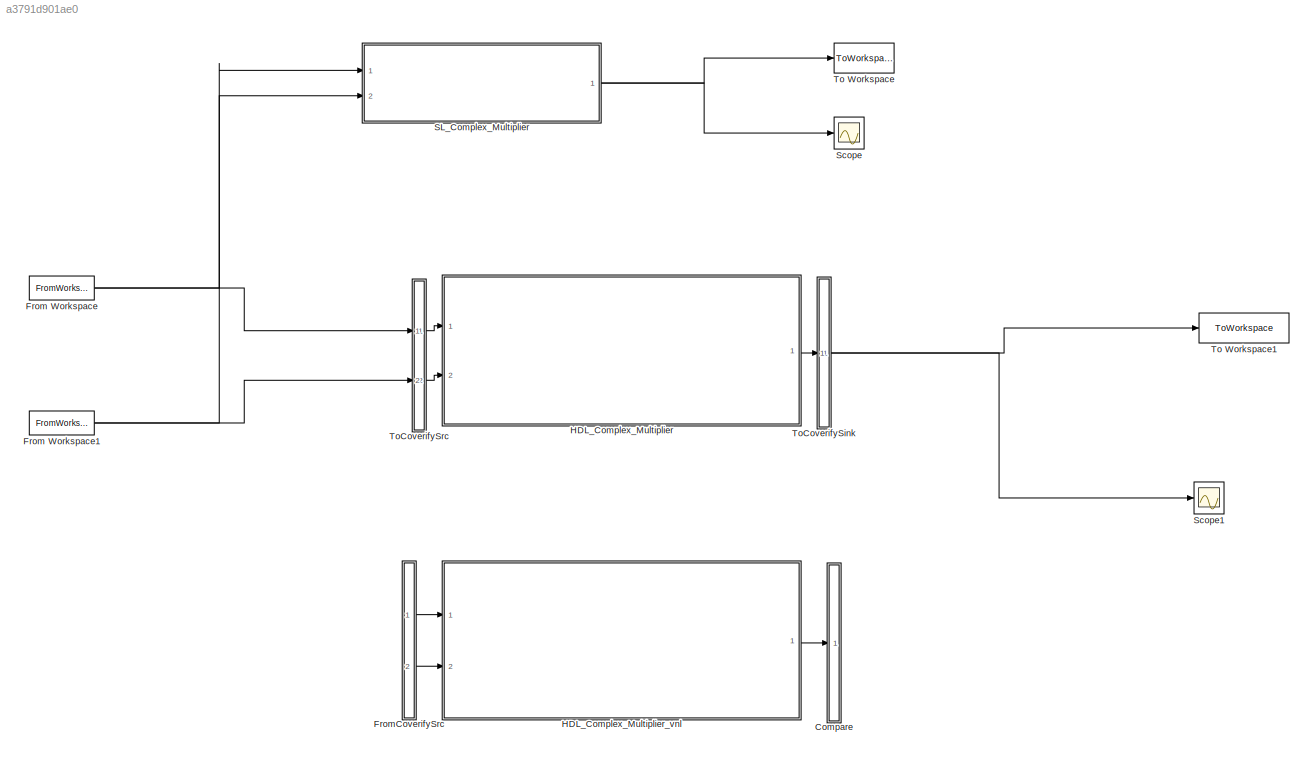
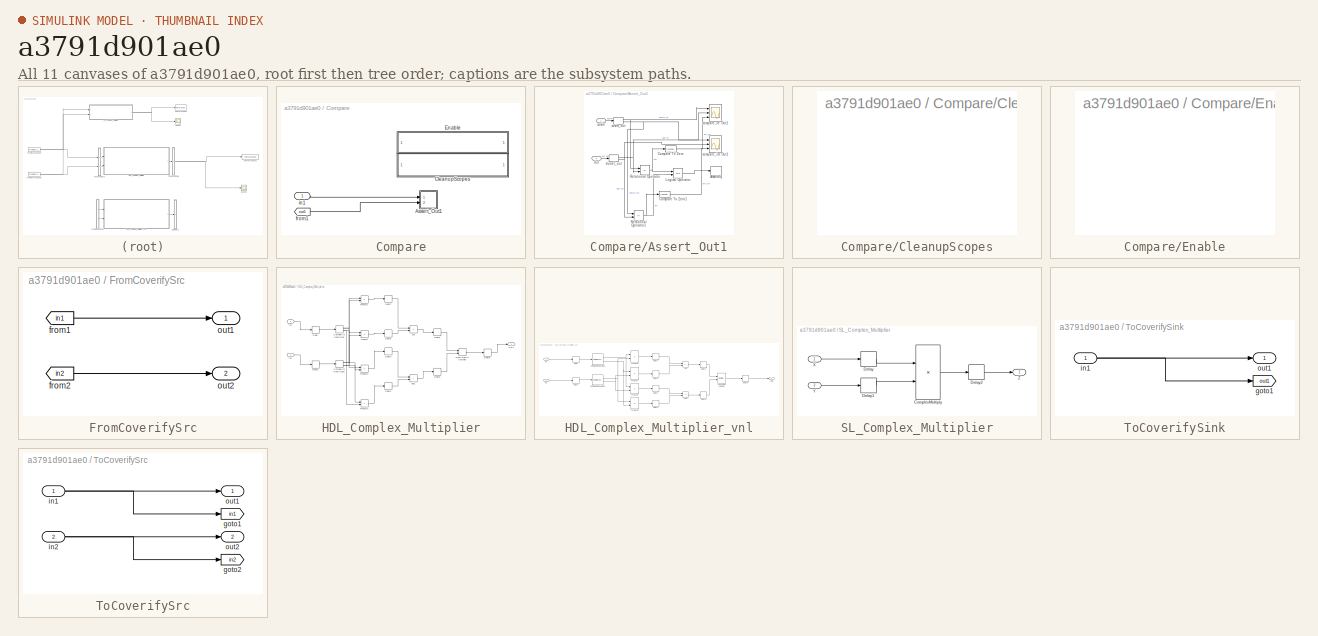
[diagram: thumbnail index - all 11 canvases of the model, root first then tree order]
MODEL slx_a3791d901ae0
KIND model
CONFIG AbsTol = auto
CONFIG EnableMultiTasking = off
CONFIG FixedStep = auto
CONFIG MaxStep = auto
CONFIG MinStep = auto
CONFIG RelTol = 1e-3
CONFIG SampleTimeConstraint = Unconstrained
CONFIG SolverName = VariableStepAuto
CONFIG StartTime = 0.0
CONFIG StopTime = 10.0
BLOCK [SubSystem] Compare
  Ports = [1]
  RequestExecContextInheritance = off
BLOCK [SubSystem] Compare/Assert_Out1
  Ports = [2]
  RequestExecContextInheritance = off
BLOCK [Assertion] Compare/Assert_Out1/AssertEq
  StopWhenAssertionFail = off
BLOCK [Reference] Compare/Assert_Out1/Compare To Zero  REF=simulink/Logic and Bit
Operations/Compare
To Zero
  Ports = [1, 1]
  SourceBlock = simulink/Logic and Bit\nOperations/Compare\nTo Zero
  SourceProductBaseCode = SL
  SourceType = Compare To Zero
BLOCK [Reference] Compare/Assert_Out1/Compare To Zero1  REF=simulink/Logic and Bit
Operations/Compare
To Zero
  Ports = [1, 1]
  SourceBlock = simulink/Logic and Bit\nOperations/Compare\nTo Zero
  SourceProductBaseCode = SL
  SourceType = Compare To Zero
BLOCK [Logic] Compare/Assert_Out1/Logical Operator
  AllPortsSameDT = off
  OutDataTypeStr = boolean
  Ports = [2, 1]
BLOCK [RelationalOperator] Compare/Assert_Out1/Relational Operator
  InputSameDT = off
  Operator = ==
  OutDataTypeStr = boolean
  Ports = [2, 1]
BLOCK [RelationalOperator] Compare/Assert_Out1/Relational Operator1
  InputSameDT = off
  Operator = ==
  OutDataTypeStr = boolean
  Ports = [2, 1]
BLOCK [Scope] Compare/Assert_Out1/compare_im: Out1
  Floating = off
  NumInputPorts = 3
  Ports = [3]
  ScopeSpecificationString = Simulink.scopes.TimeScopeBlockCfg('CurrentConfiguration', extmgr.ConfigurationSet(extmgr.Configuration('Core','General UI',true,'MessageLogAutoOpenMode','for warn/fail messages','ShowCloseAll',true,'ShowBringAllForward',true),extmgr.Configuration('Core','Source UI',true,'PlaybackToolbar',true),extmgr.Configuration('Sources','WiredSimulink',true,'PointsPerSignal',50000,'DataLoggingVariableName','Sc...<+3290ch>
BLOCK [Scope] Compare/Assert_Out1/compare_re: Out1
  Floating = off
  NumInputPorts = 3
  Ports = [3]
  ScopeSpecificationString = Simulink.scopes.TimeScopeBlockCfg('CurrentConfiguration', extmgr.ConfigurationSet(extmgr.Configuration('Core','General UI',true,'MessageLogAutoOpenMode','for warn/fail messages','ShowCloseAll',true,'ShowBringAllForward',true),extmgr.Configuration('Core','Source UI',true,'PlaybackToolbar',true),extmgr.Configuration('Sources','WiredSimulink',true,'PointsPerSignal',50000,'DataLoggingVariableName','Sc...<+3290ch>
BLOCK [Inport] Compare/Assert_Out1/cosim
BLOCK [ComplexToRealImag] Compare/Assert_Out1/cosim_out
  Ports = [1, 2]
BLOCK [Inport] Compare/Assert_Out1/dut
  Port = 2
BLOCK [ComplexToRealImag] Compare/Assert_Out1/dutref_out
  Ports = [1, 2]
BLOCK [SubSystem] Compare/CleanupScopes
  OpenFcn = blkName = gcb; %self block\nidx = regexp(blkName, '/CleanupScopes$', 'once');\nblkParent = blkName(1:idx-1);\nblks=find_system(blkParent, 'LookUnderMasks', 'all','blocktype', 'Scope');\nfor itr = 1:length(blks)\n	 hScopeCfg = get_param(blks{itr},'ScopeConfiguration');\n	 hScopeCfg.Visible = ~ hScopeCfg.Visible;\nend\ndrawnow;
  Ports = []
  RequestExecContextInheritance = off
BLOCK [SubSystem] Compare/Enable
  OpenFcn = blkName = gcb;\nidx = regexp(blkName, '/Enable$', 'once');\nblkParent = blkName(1:idx-1);\nblks=find_system(blkParent, 'LookUnderMasks', 'all','blocktype', 'Assertion');\ne = get_param(blks{1}, 'Enabled');\nif strcmp(e, 'on'), f= 'off';, else, f = 'on';, end\nfor ii=1:length(blks), set_param(blks{ii}, 'Enabled', f);, end\nset_param(gcb, 'MaskDisplay',['fprintf(message(''hdlcoder:cosim:vnl_dblclick_assert...<+47ch>
  Ports = []
  RequestExecContextInheritance = off
BLOCK [From] Compare/from1
  GotoTag = out1
  TagVisibility = global
BLOCK [Inport] Compare/in1
BLOCK [FromWorkspace] From Workspace
  Interpolate = off
  OutputAfterFinalValue = Setting to zero
  SampleTime = sample_time
  VariableName = data1
BLOCK [FromWorkspace] From Workspace1
  Interpolate = off
  OutputAfterFinalValue = Setting to zero
  SampleTime = sample_time
  VariableName = data2
BLOCK [SubSystem] FromCoverifySrc
  Ports = [0, 2]
  RequestExecContextInheritance = off
BLOCK [From] FromCoverifySrc/from1
  GotoTag = in1
  TagVisibility = global
BLOCK [From] FromCoverifySrc/from2
  GotoTag = in2
  TagVisibility = global
BLOCK [Outport] FromCoverifySrc/out1
BLOCK [Outport] FromCoverifySrc/out2
  Port = 2
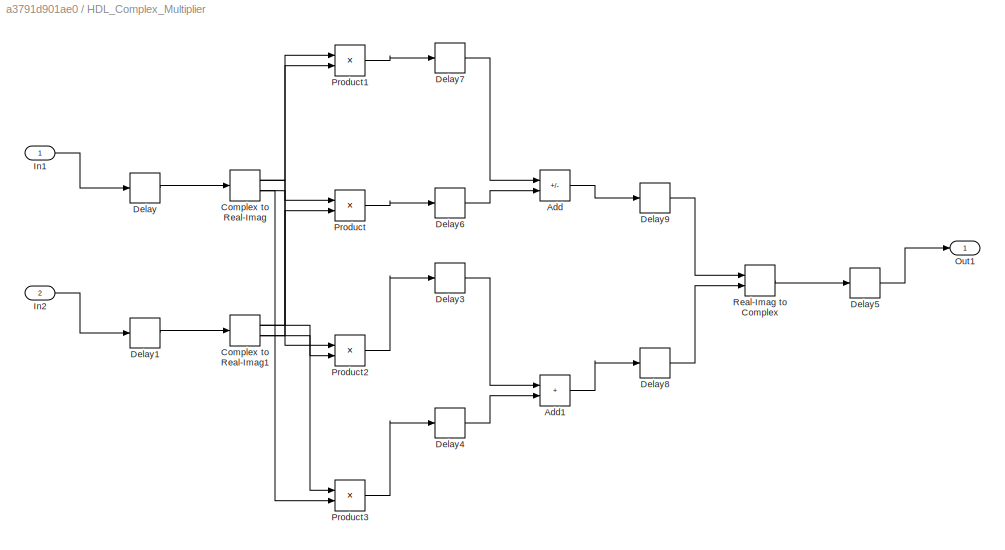
BLOCK [SubSystem] HDL_Complex_Multiplier
  Ports = [2, 1]
  RequestExecContextInheritance = off
BLOCK [Sum] HDL_Complex_Multiplier/Add
  AccumDataTypeStr = fixdt(1, 25, 16)
  IconShape = rectangular
  Inputs = +-
  OutDataTypeStr = fixdt(1, 25, 16)
  Ports = [2, 1]
  SampleTime = 1e-06
BLOCK [Sum] HDL_Complex_Multiplier/Add1
  AccumDataTypeStr = fixdt(1, 25, 16)
  IconShape = rectangular
  OutDataTypeStr = fixdt(1, 25, 16)
  Ports = [2, 1]
  SampleTime = 1e-06
BLOCK [ComplexToRealImag] HDL_Complex_Multiplier/Complex to Real-Imag
  Ports = [1, 2]
  SampleTime = 1e-06
BLOCK [ComplexToRealImag] HDL_Complex_Multiplier/Complex to Real-Imag1
  Ports = [1, 2]
  SampleTime = 1e-06
BLOCK [Delay] HDL_Complex_Multiplier/Delay
  DelayLength = double(1)
  InitialCondition = 0
  InputPortMap = u0
  Ports = [1, 1]
  SampleTime = 1e-06
BLOCK [Delay] HDL_Complex_Multiplier/Delay1
  DelayLength = double(1)
  InitialCondition = 0
  InputPortMap = u0
  Ports = [1, 1]
  SampleTime = 1e-06
BLOCK [Delay] HDL_Complex_Multiplier/Delay3
  DelayLength = double(1)
  InitialCondition = 0
  InputPortMap = u0
  Ports = [1, 1]
  SampleTime = 1e-06
BLOCK [Delay] HDL_Complex_Multiplier/Delay4
  DelayLength = double(1)
  InitialCondition = 0
  InputPortMap = u0
  Ports = [1, 1]
  SampleTime = 1e-06
BLOCK [Delay] HDL_Complex_Multiplier/Delay5
  DelayLength = double(1)
  InitialCondition = 0
  InputPortMap = u0
  Ports = [1, 1]
  SampleTime = 1e-06
BLOCK [Delay] HDL_Complex_Multiplier/Delay6
  DelayLength = double(1)
  InitialCondition = 0
  InputPortMap = u0
  Ports = [1, 1]
  SampleTime = 1e-06
BLOCK [Delay] HDL_Complex_Multiplier/Delay7
  DelayLength = double(1)
  InitialCondition = 0
  InputPortMap = u0
  Ports = [1, 1]
  SampleTime = 1e-06
BLOCK [Delay] HDL_Complex_Multiplier/Delay8
  DelayLength = double(1)
  InitialCondition = 0
  InputPortMap = u0
  Ports = [1, 1]
  SampleTime = 1e-06
BLOCK [Delay] HDL_Complex_Multiplier/Delay9
  DelayLength = double(1)
  InitialCondition = 0
  InputPortMap = u0
  Ports = [1, 1]
  SampleTime = 1e-06
BLOCK [Inport] HDL_Complex_Multiplier/In1
  OutDataTypeStr = fixdt(1, 12, 8)
  PortDimensions = 1
  SampleTime = 1e-06
  SignalType = complex
BLOCK [Inport] HDL_Complex_Multiplier/In2
  OutDataTypeStr = fixdt(1, 12, 8)
  Port = 2
  PortDimensions = 1
  SampleTime = 1e-06
  SignalType = complex
BLOCK [Outport] HDL_Complex_Multiplier/Out1
BLOCK [Product] HDL_Complex_Multiplier/Product
  Inputs = **
  OutDataTypeStr = fixdt(1, 24, 16)
  Ports = [2, 1]
  SampleTime = 1e-06
BLOCK [Product] HDL_Complex_Multiplier/Product1
  Inputs = **
  OutDataTypeStr = fixdt(1, 24, 16)
  Ports = [2, 1]
  SampleTime = 1e-06
BLOCK [Product] HDL_Complex_Multiplier/Product2
  Inputs = **
  OutDataTypeStr = fixdt(1, 24, 16)
  Ports = [2, 1]
  SampleTime = 1e-06
BLOCK [Product] HDL_Complex_Multiplier/Product3
  Inputs = **
  OutDataTypeStr = fixdt(1, 24, 16)
  Ports = [2, 1]
  SampleTime = 1e-06
BLOCK [RealImagToComplex] HDL_Complex_Multiplier/Real-Imag to Complex
  ConstantPart = fi(0,1,25,16,"hex","0000000")
  Ports = [2, 1]
  SampleTime = 1e-06
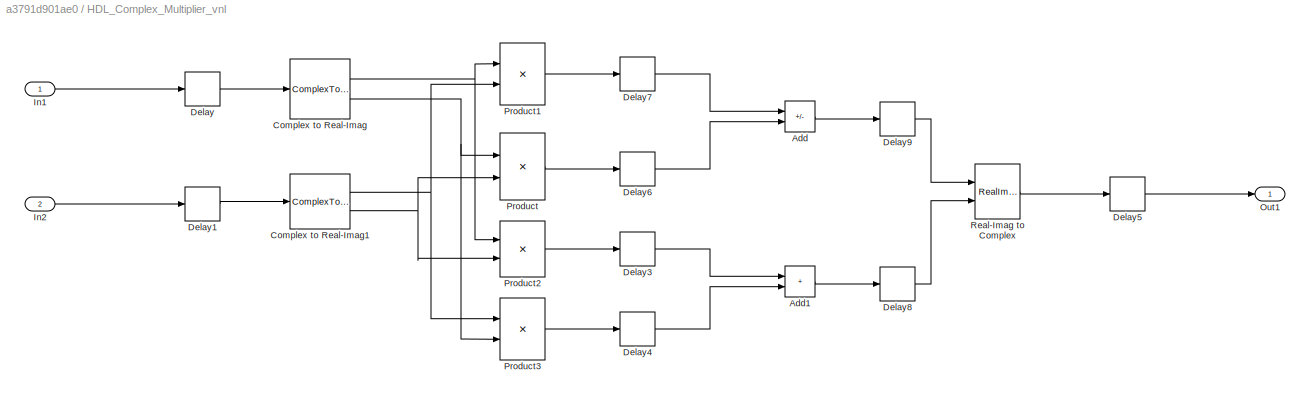
BLOCK [SubSystem] HDL_Complex_Multiplier_vnl
  Ports = [2, 1]
  RequestExecContextInheritance = off
BLOCK [Sum] HDL_Complex_Multiplier_vnl/Add
  IconShape = rectangular
  Inputs = +-
  Ports = [2, 1]
BLOCK [Sum] HDL_Complex_Multiplier_vnl/Add1
  IconShape = rectangular
  Ports = [2, 1]
BLOCK [ComplexToRealImag] HDL_Complex_Multiplier_vnl/Complex to Real-Imag
  Ports = [1, 2]
BLOCK [ComplexToRealImag] HDL_Complex_Multiplier_vnl/Complex to Real-Imag1
  Ports = [1, 2]
BLOCK [Delay] HDL_Complex_Multiplier_vnl/Delay
  DelayLength = 1
  InitialCondition = 0
  InputPortMap = u0
  Ports = [1, 1]
BLOCK [Delay] HDL_Complex_Multiplier_vnl/Delay1
  DelayLength = 1
  InitialCondition = 0
  InputPortMap = u0
  Ports = [1, 1]
BLOCK [Delay] HDL_Complex_Multiplier_vnl/Delay3
  DelayLength = 1
  InitialCondition = 0
  InputPortMap = u0
  Ports = [1, 1]
BLOCK [Delay] HDL_Complex_Multiplier_vnl/Delay4
  DelayLength = 1
  InitialCondition = 0
  InputPortMap = u0
  Ports = [1, 1]
BLOCK [Delay] HDL_Complex_Multiplier_vnl/Delay5
  DelayLength = 1
  InitialCondition = 0
  InputPortMap = u0
  Ports = [1, 1]
BLOCK [Delay] HDL_Complex_Multiplier_vnl/Delay6
  DelayLength = 1
  InitialCondition = 0
  InputPortMap = u0
  Ports = [1, 1]
BLOCK [Delay] HDL_Complex_Multiplier_vnl/Delay7
  DelayLength = 1
  InitialCondition = 0
  InputPortMap = u0
  Ports = [1, 1]
BLOCK [Delay] HDL_Complex_Multiplier_vnl/Delay8
  DelayLength = 1
  InitialCondition = 0
  InputPortMap = u0
  Ports = [1, 1]
BLOCK [Delay] HDL_Complex_Multiplier_vnl/Delay9
  DelayLength = 1
  InitialCondition = 0
  InputPortMap = u0
  Ports = [1, 1]
BLOCK [Inport] HDL_Complex_Multiplier_vnl/In1
BLOCK [Inport] HDL_Complex_Multiplier_vnl/In2
  Port = 2
BLOCK [Outport] HDL_Complex_Multiplier_vnl/Out1
BLOCK [Product] HDL_Complex_Multiplier_vnl/Product
  Ports = [2, 1]
BLOCK [Product] HDL_Complex_Multiplier_vnl/Product1
  Ports = [2, 1]
BLOCK [Product] HDL_Complex_Multiplier_vnl/Product2
  Ports = [2, 1]
BLOCK [Product] HDL_Complex_Multiplier_vnl/Product3
  Ports = [2, 1]
BLOCK [RealImagToComplex] HDL_Complex_Multiplier_vnl/Real-Imag to Complex
  Ports = [2, 1]
BLOCK [SubSystem] SL_Complex_Multiplier
  Ports = [2, 1]
  RequestExecContextInheritance = off
BLOCK [Product] SL_Complex_Multiplier/ComplexMultiply
  Ports = [2, 1]
BLOCK [Delay] SL_Complex_Multiplier/Delay
  DelayLength = 1
  InitialCondition = 0
  InputPortMap = u0
  Ports = [1, 1]
BLOCK [Delay] SL_Complex_Multiplier/Delay1
  DelayLength = 1
  InitialCondition = 0
  InputPortMap = u0
  Ports = [1, 1]
BLOCK [Delay] SL_Complex_Multiplier/Delay2
  DelayLength = 3
  InitialCondition = 0
  InputPortMap = u0
  Ports = [1, 1]
BLOCK [Inport] SL_Complex_Multiplier/X
BLOCK [Inport] SL_Complex_Multiplier/Y
  Port = 2
BLOCK [Outport] SL_Complex_Multiplier/Z
  VectorParamsAs1DForOutWhenUnconnected = off
BLOCK [Scope] Scope
  Floating = off
  NumInputPorts = 1
  Ports = [1]
  ScopeSpecificationString = Simulink.scopes.TimeScopeBlockCfg('CurrentConfiguration', extmgr.ConfigurationSet(extmgr.Configuration('Core','General UI',true),extmgr.Configuration('Core','Source UI',true),extmgr.Configuration('Sources','WiredSimulink',true),extmgr.Configuration('Visuals','Time Domain',true,'SerializedDisplays',{struct('MinYLimReal','-0.72914','MaxYLimReal','1.18992','YLabelReal','','MinYLimMag','0.00000','MaxY...<+1550ch>
BLOCK [Scope] Scope1
  Floating = off
  NumInputPorts = 1
  Ports = [1]
  ScopeSpecificationString = Simulink.scopes.TimeScopeBlockCfg('CurrentConfiguration', extmgr.ConfigurationSet(extmgr.Configuration('Core','General UI',true),extmgr.Configuration('Core','Source UI',true),extmgr.Configuration('Sources','WiredSimulink',true,'DataLoggingVariableName','ScopeData1'),extmgr.Configuration('Visuals','Time Domain',true,'SerializedDisplays',{struct('MinYLimReal','-0.96153','MaxYLimReal','1.55832','YLab...<+1447ch>
BLOCK [ToWorkspace] To Workspace
  FixptAsFi = on
  MaxDataPoints = inf
  Ports = [1]
  SampleTime = -1
  SaveFormat = Structure With Time
  VariableName = sw_out
BLOCK [ToWorkspace] To Workspace1
  FixptAsFi = on
  MaxDataPoints = inf
  Ports = [1]
  SampleTime = -1
  SaveFormat = Structure With Time
  VariableName = hw_out
BLOCK [SubSystem] ToCoverifySink
  Ports = [1, 1]
  RequestExecContextInheritance = off
BLOCK [Goto] ToCoverifySink/goto1
  GotoTag = out1
  TagVisibility = global
BLOCK [Inport] ToCoverifySink/in1
BLOCK [Outport] ToCoverifySink/out1
BLOCK [SubSystem] ToCoverifySrc
  Ports = [2, 2]
  RequestExecContextInheritance = off
BLOCK [Goto] ToCoverifySrc/goto1
  GotoTag = in1
  TagVisibility = global
BLOCK [Goto] ToCoverifySrc/goto2
  GotoTag = in2
  TagVisibility = global
BLOCK [Inport] ToCoverifySrc/in1
BLOCK [Inport] ToCoverifySrc/in2
  Port = 2
BLOCK [Outport] ToCoverifySrc/out1
BLOCK [Outport] ToCoverifySrc/out2
  Port = 2
LINE Compare/Assert_Out1/Compare To Zero1:1 -> Compare/Assert_Out1/compare_im: Out1:3
LINE Compare/Assert_Out1/Compare To Zero:1 -> Compare/Assert_Out1/compare_re: Out1:3
LINE Compare/Assert_Out1/Logical Operator:1 -> Compare/Assert_Out1/AssertEq:1
NET Compare/Assert_Out1/Relational Operator1:1 -> Compare/Assert_Out1/Compare To Zero1:1, Compare/Assert_Out1/Logical Operator:2
NET Compare/Assert_Out1/Relational Operator:1 -> Compare/Assert_Out1/Compare To Zero:1, Compare/Assert_Out1/Logical Operator:1
LINE Compare/Assert_Out1/cosim:1 -> Compare/Assert_Out1/cosim_out:1
NET Compare/Assert_Out1/cosim_out:1 -> Compare/Assert_Out1/Relational Operator:1, Compare/Assert_Out1/compare_re: Out1:1
NET Compare/Assert_Out1/cosim_out:2 -> Compare/Assert_Out1/Relational Operator1:1, Compare/Assert_Out1/compare_im: Out1:1
LINE Compare/Assert_Out1/dut:1 -> Compare/Assert_Out1/dutref_out:1
NET Compare/Assert_Out1/dutref_out:1 -> Compare/Assert_Out1/Relational Operator:2, Compare/Assert_Out1/compare_re: Out1:2
NET Compare/Assert_Out1/dutref_out:2 -> Compare/Assert_Out1/Relational Operator1:2, Compare/Assert_Out1/compare_im: Out1:2
LINE Compare/from1:1 -> Compare/Assert_Out1:2
LINE Compare/in1:1 -> Compare/Assert_Out1:1
NET From Workspace1:1 -> SL_Complex_Multiplier:2, ToCoverifySrc:2
NET From Workspace:1 -> SL_Complex_Multiplier:1, ToCoverifySrc:1
LINE FromCoverifySrc/from1:1 -> FromCoverifySrc/out1:1
LINE FromCoverifySrc/from2:1 -> FromCoverifySrc/out2:1
LINE FromCoverifySrc:1 -> HDL_Complex_Multiplier_vnl:1
LINE FromCoverifySrc:2 -> HDL_Complex_Multiplier_vnl:2
LINE HDL_Complex_Multiplier/Add1:1 -> HDL_Complex_Multiplier/Delay8:1
LINE HDL_Complex_Multiplier/Add:1 -> HDL_Complex_Multiplier/Delay9:1
NET HDL_Complex_Multiplier/Complex to Real-Imag1:1 -> HDL_Complex_Multiplier/Product1:2, HDL_Complex_Multiplier/Product3:1
NET HDL_Complex_Multiplier/Complex to Real-Imag1:2 -> HDL_Complex_Multiplier/Product2:2, HDL_Complex_Multiplier/Product:2
NET HDL_Complex_Multiplier/Complex to Real-Imag:1 -> HDL_Complex_Multiplier/Product1:1, HDL_Complex_Multiplier/Product2:1
NET HDL_Complex_Multiplier/Complex to Real-Imag:2 -> HDL_Complex_Multiplier/Product3:2, HDL_Complex_Multiplier/Product:1
LINE HDL_Complex_Multiplier/Delay1:1 -> HDL_Complex_Multiplier/Complex to Real-Imag1:1
LINE HDL_Complex_Multiplier/Delay3:1 -> HDL_Complex_Multiplier/Add1:1
LINE HDL_Complex_Multiplier/Delay4:1 -> HDL_Complex_Multiplier/Add1:2
LINE HDL_Complex_Multiplier/Delay5:1 -> HDL_Complex_Multiplier/Out1:1
LINE HDL_Complex_Multiplier/Delay6:1 -> HDL_Complex_Multiplier/Add:2
LINE HDL_Complex_Multiplier/Delay7:1 -> HDL_Complex_Multiplier/Add:1
LINE HDL_Complex_Multiplier/Delay8:1 -> HDL_Complex_Multiplier/Real-Imag to Complex:2
LINE HDL_Complex_Multiplier/Delay9:1 -> HDL_Complex_Multiplier/Real-Imag to Complex:1
LINE HDL_Complex_Multiplier/Delay:1 -> HDL_Complex_Multiplier/Complex to Real-Imag:1
LINE HDL_Complex_Multiplier/In1:1 -> HDL_Complex_Multiplier/Delay:1
LINE HDL_Complex_Multiplier/In2:1 -> HDL_Complex_Multiplier/Delay1:1
LINE HDL_Complex_Multiplier/Product1:1 -> HDL_Complex_Multiplier/Delay7:1
LINE HDL_Complex_Multiplier/Product2:1 -> HDL_Complex_Multiplier/Delay3:1
LINE HDL_Complex_Multiplier/Product3:1 -> HDL_Complex_Multiplier/Delay4:1
LINE HDL_Complex_Multiplier/Product:1 -> HDL_Complex_Multiplier/Delay6:1
LINE HDL_Complex_Multiplier/Real-Imag to Complex:1 -> HDL_Complex_Multiplier/Delay5:1
LINE HDL_Complex_Multiplier:1 -> ToCoverifySink:1
LINE HDL_Complex_Multiplier_vnl/Add1:1 -> HDL_Complex_Multiplier_vnl/Delay8:1
LINE HDL_Complex_Multiplier_vnl/Add:1 -> HDL_Complex_Multiplier_vnl/Delay9:1
NET HDL_Complex_Multiplier_vnl/Complex to Real-Imag1:1 -> HDL_Complex_Multiplier_vnl/Product1:2, HDL_Complex_Multiplier_vnl/Product3:1
NET HDL_Complex_Multiplier_vnl/Complex to Real-Imag1:2 -> HDL_Complex_Multiplier_vnl/Product2:2, HDL_Complex_Multiplier_vnl/Product:2
NET HDL_Complex_Multiplier_vnl/Complex to Real-Imag:1 -> HDL_Complex_Multiplier_vnl/Product1:1, HDL_Complex_Multiplier_vnl/Product2:1
NET HDL_Complex_Multiplier_vnl/Complex to Real-Imag:2 -> HDL_Complex_Multiplier_vnl/Product3:2, HDL_Complex_Multiplier_vnl/Product:1
LINE HDL_Complex_Multiplier_vnl/Delay1:1 -> HDL_Complex_Multiplier_vnl/Complex to Real-Imag1:1
LINE HDL_Complex_Multiplier_vnl/Delay3:1 -> HDL_Complex_Multiplier_vnl/Add1:1
LINE HDL_Complex_Multiplier_vnl/Delay4:1 -> HDL_Complex_Multiplier_vnl/Add1:2
LINE HDL_Complex_Multiplier_vnl/Delay5:1 -> HDL_Complex_Multiplier_vnl/Out1:1
LINE HDL_Complex_Multiplier_vnl/Delay6:1 -> HDL_Complex_Multiplier_vnl/Add:2
LINE HDL_Complex_Multiplier_vnl/Delay7:1 -> HDL_Complex_Multiplier_vnl/Add:1
LINE HDL_Complex_Multiplier_vnl/Delay8:1 -> HDL_Complex_Multiplier_vnl/Real-Imag to Complex:2
LINE HDL_Complex_Multiplier_vnl/Delay9:1 -> HDL_Complex_Multiplier_vnl/Real-Imag to Complex:1
LINE HDL_Complex_Multiplier_vnl/Delay:1 -> HDL_Complex_Multiplier_vnl/Complex to Real-Imag:1
LINE HDL_Complex_Multiplier_vnl/In1:1 -> HDL_Complex_Multiplier_vnl/Delay:1
LINE HDL_Complex_Multiplier_vnl/In2:1 -> HDL_Complex_Multiplier_vnl/Delay1:1
LINE HDL_Complex_Multiplier_vnl/Product1:1 -> HDL_Complex_Multiplier_vnl/Delay7:1
LINE HDL_Complex_Multiplier_vnl/Product2:1 -> HDL_Complex_Multiplier_vnl/Delay3:1
LINE HDL_Complex_Multiplier_vnl/Product3:1 -> HDL_Complex_Multiplier_vnl/Delay4:1
LINE HDL_Complex_Multiplier_vnl/Product:1 -> HDL_Complex_Multiplier_vnl/Delay6:1
LINE HDL_Complex_Multiplier_vnl/Real-Imag to Complex:1 -> HDL_Complex_Multiplier_vnl/Delay5:1
LINE HDL_Complex_Multiplier_vnl:1 -> Compare:1
LINE SL_Complex_Multiplier/ComplexMultiply:1 -> SL_Complex_Multiplier/Delay2:1
LINE SL_Complex_Multiplier/Delay1:1 -> SL_Complex_Multiplier/ComplexMultiply:2
LINE SL_Complex_Multiplier/Delay2:1 -> SL_Complex_Multiplier/Z:1
LINE SL_Complex_Multiplier/Delay:1 -> SL_Complex_Multiplier/ComplexMultiply:1
LINE SL_Complex_Multiplier/X:1 -> SL_Complex_Multiplier/Delay:1
LINE SL_Complex_Multiplier/Y:1 -> SL_Complex_Multiplier/Delay1:1
NET SL_Complex_Multiplier:1 -> Scope:1, To Workspace:1
NET ToCoverifySink/in1:1 -> ToCoverifySink/goto1:1, ToCoverifySink/out1:1
NET ToCoverifySink:1 -> Scope1:1, To Workspace1:1
NET ToCoverifySrc/in1:1 -> ToCoverifySrc/goto1:1, ToCoverifySrc/out1:1
NET ToCoverifySrc/in2:1 -> ToCoverifySrc/goto2:1, ToCoverifySrc/out2:1
LINE ToCoverifySrc:1 -> HDL_Complex_Multiplier:1
LINE ToCoverifySrc:2 -> HDL_Complex_Multiplier:2
note: NET lines group one-source signal fan-out (src -> all destinations, sorted); 1:1 wires keep LINE
